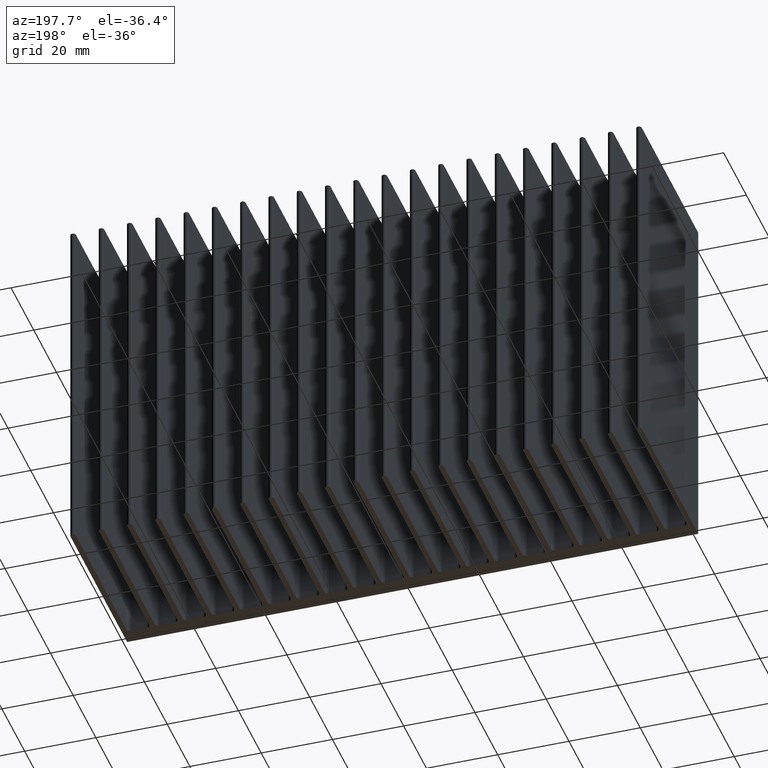
[diagram: clean part render]
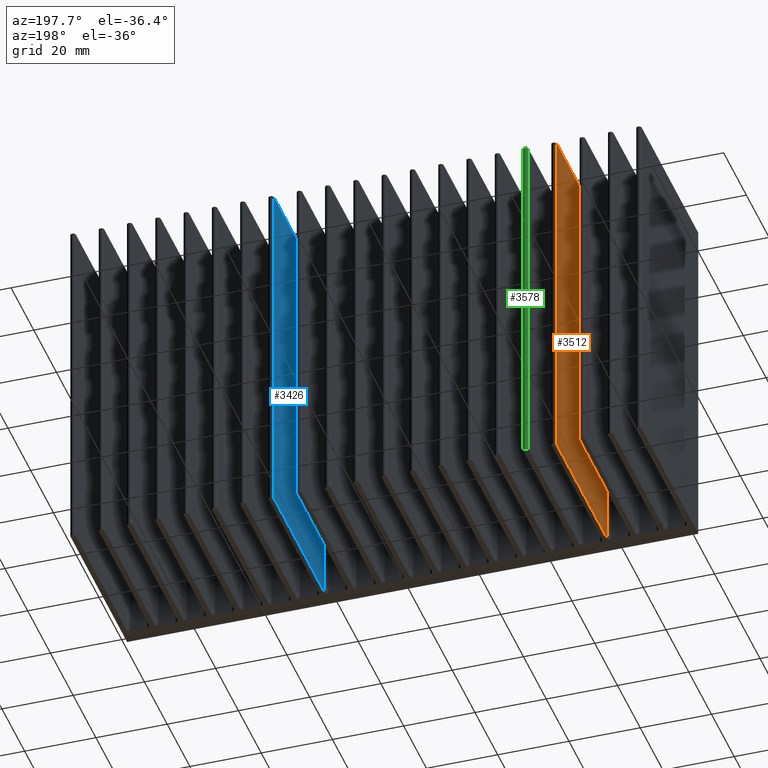
[diagram: same view with three faces highlighted in distinct colors, each labeled with its STEP entity id]
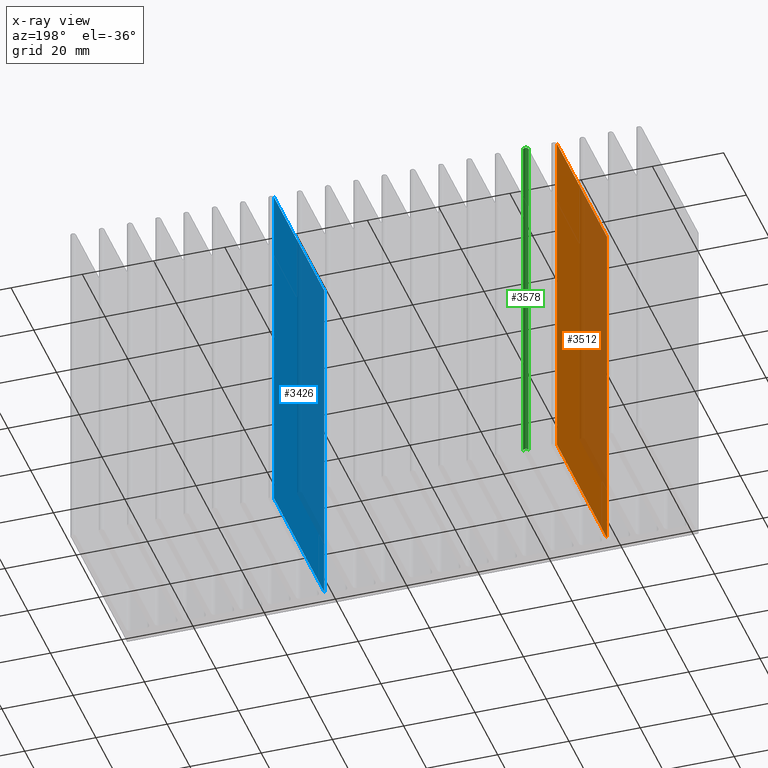
[diagram: x-ray of the same camera — body ghosted, the three highlighted faces saturated]
A machine part, auxiliary view with three faces highlighted in distinct colors.
The next image is the same camera in x-ray (body ghosted, the three faces saturated) — at least one of them is partly hidden behind the body in this view.
Their STEP definitions:

[orange] entity #3512 — the highlighted planar face has unit normal (1, 0, -0).
#318 = ORIENTED_EDGE ( 'NONE', *, *, #2426, .F. ) ;
#514 = DIRECTION ( 'NONE',  ( 0.0000000000000000000, -1.000000000000000000, 0.0000000000000000000 ) ) ;
#527 = ORIENTED_EDGE ( 'NONE', *, *, #796, .T. ) ;
#542 = DIRECTION ( 'NONE',  ( -0.0000000000000000000, 0.0000000000000000000, -1.000000000000000000 ) ) ;
#543 = ORIENTED_EDGE ( 'NONE', *, *, #3230, .F. ) ;
#575 = ORIENTED_EDGE ( 'NONE', *, *, #2797, .T. ) ;
#580 = DIRECTION ( 'NONE',  ( -0.0000000000000000000, -0.0000000000000000000, -1.000000000000000000 ) ) ;
#796 = EDGE_CURVE ( 'NONE', #1583, #2129, #1703, .T. ) ;
#1261 = DIRECTION ( 'NONE',  ( 0.0000000000000000000, -1.000000000000000000, 0.0000000000000000000 ) ) ;
#1276 = VECTOR ( 'NONE', #1261, 1000.000000000000000 ) ;
#1312 = CARTESIAN_POINT ( 'NONE',  ( -56.32999999999979934, -19.75000000000029488, 50.00000000000000000 ) ) ;
#1336 = VECTOR ( 'NONE', #580, 1000.000000000000000 ) ;
#1401 = LINE ( 'NONE', #1954, #1276 ) ;
#1443 = LINE ( 'NONE', #3567, #1336 ) ;
#1490 = VECTOR ( 'NONE', #2206, 1000.000000000000000 ) ;
#1583 = VERTEX_POINT ( 'NONE', #2953 ) ;
#1703 = LINE ( 'NONE', #2446, #1490 ) ;
#1954 = CARTESIAN_POINT ( 'NONE',  ( -56.32999999999979934, 24.49999999999925748, 50.00000000000000000 ) ) ;
#2129 = VERTEX_POINT ( 'NONE', #4100 ) ;
#2206 = DIRECTION ( 'NONE',  ( -0.0000000000000000000, -0.0000000000000000000, -1.000000000000000000 ) ) ;
#2426 = EDGE_CURVE ( 'NONE', #4222, #2491, #1443, .T. ) ;
#2446 = CARTESIAN_POINT ( 'NONE',  ( -56.33000000000025409, 24.49999999999925748, 50.00000000000000000 ) ) ;
#2491 = VERTEX_POINT ( 'NONE', #2676 ) ;
#2676 = CARTESIAN_POINT ( 'NONE',  ( -56.32999999999979934, -19.75000000000029488, -50.00000000000000000 ) ) ;
#2797 = EDGE_CURVE ( 'NONE', #2129, #2491, #4065, .T. ) ;
#2881 = DIRECTION ( 'NONE',  ( 1.000000000000000000, 0.0000000000000000000, -0.0000000000000000000 ) ) ;
#2953 = CARTESIAN_POINT ( 'NONE',  ( -56.33000000000025409, 24.49999999999925748, 50.00000000000000000 ) ) ;
#3230 = EDGE_CURVE ( 'NONE', #1583, #4222, #1401, .T. ) ;
#3399 = FACE_OUTER_BOUND ( 'NONE', #3882, .T. ) ;
#3420 = AXIS2_PLACEMENT_3D ( 'NONE', #3541, #2881, #542 ) ;
#3512 = ADVANCED_FACE ( 'NONE', ( #3399 ), #4254, .F. ) ;
#3541 = CARTESIAN_POINT ( 'NONE',  ( -56.32999999999979934, 24.49999999999925748, 50.00000000000000000 ) ) ;
#3542 = VECTOR ( 'NONE', #514, 1000.000000000000000 ) ;
#3567 = CARTESIAN_POINT ( 'NONE',  ( -56.32999999999979934, -19.75000000000029488, 50.00000000000000000 ) ) ;
#3882 = EDGE_LOOP ( 'NONE', ( #575, #318, #543, #527 ) ) ;
#4065 = LINE ( 'NONE', #4220, #3542 ) ;
#4100 = CARTESIAN_POINT ( 'NONE',  ( -56.33000000000025409, 24.49999999999925748, -50.00000000000000000 ) ) ;
#4220 = CARTESIAN_POINT ( 'NONE',  ( -56.32999999999979934, 24.49999999999925748, -50.00000000000000000 ) ) ;
#4222 = VERTEX_POINT ( 'NONE', #1312 ) ;
#4254 = PLANE ( 'NONE',  #3420 ) ;

[blue] entity #3426 — the highlighted planar face has unit normal (1, 0, -0).
#43 = CARTESIAN_POINT ( 'NONE',  ( 23.07000000000050832, 24.49999999999925748, 50.00000000000000000 ) ) ;
#237 = VERTEX_POINT ( 'NONE', #879 ) ;
#409 = VERTEX_POINT ( 'NONE', #1492 ) ;
#504 = DIRECTION ( 'NONE',  ( -0.0000000000000000000, -0.0000000000000000000, -1.000000000000000000 ) ) ;
#839 = CARTESIAN_POINT ( 'NONE',  ( 23.06999999999982265, 24.49999999999925748, 50.00000000000000000 ) ) ;
#879 = CARTESIAN_POINT ( 'NONE',  ( 23.06999999999982265, 24.49999999999925748, 50.00000000000000000 ) ) ;
#907 = VECTOR ( 'NONE', #3544, 1000.000000000000000 ) ;
#928 = EDGE_LOOP ( 'NONE', ( #1571, #1565, #1523, #1476 ) ) ;
#1067 = AXIS2_PLACEMENT_3D ( 'NONE', #43, #1709, #3662 ) ;
#1120 = DIRECTION ( 'NONE',  ( -0.0000000000000000000, -0.0000000000000000000, -1.000000000000000000 ) ) ;
#1342 = LINE ( 'NONE', #2269, #907 ) ;
#1408 = CARTESIAN_POINT ( 'NONE',  ( 23.06999999999982265, 24.49999999999925748, -50.00000000000000000 ) ) ;
#1475 = CARTESIAN_POINT ( 'NONE',  ( 23.07000000000075701, -19.75000000000029488, 50.00000000000000000 ) ) ;
#1476 = ORIENTED_EDGE ( 'NONE', *, *, #2818, .T. ) ;
#1492 = CARTESIAN_POINT ( 'NONE',  ( 23.07000000000075701, -19.75000000000029488, 50.00000000000000000 ) ) ;
#1523 = ORIENTED_EDGE ( 'NONE', *, *, #2228, .F. ) ;
#1565 = ORIENTED_EDGE ( 'NONE', *, *, #3022, .F. ) ;
#1571 = ORIENTED_EDGE ( 'NONE', *, *, #3251, .T. ) ;
#1709 = DIRECTION ( 'NONE',  ( 1.000000000000000000, 5.645201820127971357E-15, -0.0000000000000000000 ) ) ;
#2066 = PLANE ( 'NONE',  #1067 ) ;
#2228 = EDGE_CURVE ( 'NONE', #237, #409, #2731, .T. ) ;
#2269 = CARTESIAN_POINT ( 'NONE',  ( 23.07000000000050832, 24.49999999999925748, -50.00000000000000000 ) ) ;
#2600 = LINE ( 'NONE', #1475, #2742 ) ;
#2653 = FACE_OUTER_BOUND ( 'NONE', #928, .T. ) ;
#2696 = VECTOR ( 'NONE', #3905, 1000.000000000000000 ) ;
#2731 = LINE ( 'NONE', #4251, #2696 ) ;
#2742 = VECTOR ( 'NONE', #1120, 1000.000000000000000 ) ;
#2818 = EDGE_CURVE ( 'NONE', #237, #3878, #3398, .T. ) ;
#2899 = VERTEX_POINT ( 'NONE', #3817 ) ;
#3022 = EDGE_CURVE ( 'NONE', #409, #2899, #2600, .T. ) ;
#3251 = EDGE_CURVE ( 'NONE', #3878, #2899, #1342, .T. ) ;
#3343 = VECTOR ( 'NONE', #504, 1000.000000000000000 ) ;
#3398 = LINE ( 'NONE', #839, #3343 ) ;
#3426 = ADVANCED_FACE ( 'NONE', ( #2653 ), #2066, .F. ) ;
#3544 = DIRECTION ( 'NONE',  ( 5.645201820127971357E-15, -1.000000000000000000, 0.0000000000000000000 ) ) ;
#3662 = DIRECTION ( 'NONE',  ( -5.645201820127971357E-15, 1.000000000000000000, 0.0000000000000000000 ) ) ;
#3817 = CARTESIAN_POINT ( 'NONE',  ( 23.07000000000075701, -19.75000000000029488, -50.00000000000000000 ) ) ;
#3878 = VERTEX_POINT ( 'NONE', #1408 ) ;
#3905 = DIRECTION ( 'NONE',  ( 5.645201820127971357E-15, -1.000000000000000000, 0.0000000000000000000 ) ) ;
#4251 = CARTESIAN_POINT ( 'NONE',  ( 23.07000000000050832, 24.49999999999925748, 50.00000000000000000 ) ) ;

[green] entity #3578 — the highlighted cylindrical surface (edge-blend (fillet) strip) has radius 0.75 mm, axis along (-0, -0, -1).
#252 = DIRECTION ( 'NONE',  ( -0.0000000000000000000, -0.0000000000000000000, -1.000000000000000000 ) ) ;
#745 = DIRECTION ( 'NONE',  ( 1.000000000000000000, 0.0000000000000000000, 0.0000000000000000000 ) ) ;
#842 = CIRCLE ( 'NONE', #2224, 0.7499999999995426991 ) ;
#844 = ORIENTED_EDGE ( 'NONE', *, *, #3695, .F. ) ;
#1122 = ORIENTED_EDGE ( 'NONE', *, *, #2477, .T. ) ;
#1149 = AXIS2_PLACEMENT_3D ( 'NONE', #3745, #3067, #745 ) ;
#1169 = VECTOR ( 'NONE', #252, 1000.000000000000000 ) ;
#1206 = ORIENTED_EDGE ( 'NONE', *, *, #3106, .T. ) ;
#1386 = LINE ( 'NONE', #2606, #1169 ) ;
#1506 = CYLINDRICAL_SURFACE ( 'NONE', #2217, 0.7500000000005626610 ) ;
#1579 = CARTESIAN_POINT ( 'NONE',  ( -47.63999999999975188, 24.50000000000028422, 50.00000000000000000 ) ) ;
#1601 = DIRECTION ( 'NONE',  ( 0.0000000000000000000, 0.0000000000000000000, 1.000000000000000000 ) ) ;
#1607 = CARTESIAN_POINT ( 'NONE',  ( -46.89000000000020663, 24.49999999999925748, 50.00000000000000000 ) ) ;
#1647 = DIRECTION ( 'NONE',  ( 1.000000000000000000, 0.0000000000000000000, 0.0000000000000000000 ) ) ;
#1868 = EDGE_CURVE ( 'NONE', #2359, #3788, #842, .T. ) ;
#1931 = VECTOR ( 'NONE', #3490, 1000.000000000000000 ) ;
#2114 = VERTEX_POINT ( 'NONE', #4165 ) ;
#2124 = DIRECTION ( 'NONE',  ( -1.000000000000000000, 0.0000000000000000000, 0.0000000000000000000 ) ) ;
#2192 = LINE ( 'NONE', #3841, #1931 ) ;
#2217 = AXIS2_PLACEMENT_3D ( 'NONE', #2744, #3059, #2124 ) ;
#2224 = AXIS2_PLACEMENT_3D ( 'NONE', #1579, #1601, #1647 ) ;
#2336 = CIRCLE ( 'NONE', #1149, 0.7500000000005626610 ) ;
#2359 = VERTEX_POINT ( 'NONE', #1607 ) ;
#2404 = ORIENTED_EDGE ( 'NONE', *, *, #1868, .F. ) ;
#2477 = EDGE_CURVE ( 'NONE', #2359, #2114, #1386, .T. ) ;
#2606 = CARTESIAN_POINT ( 'NONE',  ( -46.89000000000020663, 24.49999999999925748, 50.00000000000000000 ) ) ;
#2711 = EDGE_LOOP ( 'NONE', ( #1206, #844, #2404, #1122 ) ) ;
#2744 = CARTESIAN_POINT ( 'NONE',  ( -47.63999999999975188, 24.50000000000028422, 50.00000000000000000 ) ) ;
#3059 = DIRECTION ( 'NONE',  ( -0.0000000000000000000, -0.0000000000000000000, -1.000000000000000000 ) ) ;
#3067 = DIRECTION ( 'NONE',  ( 0.0000000000000000000, 0.0000000000000000000, 1.000000000000000000 ) ) ;
#3106 = EDGE_CURVE ( 'NONE', #2114, #4240, #2336, .T. ) ;
#3490 = DIRECTION ( 'NONE',  ( -0.0000000000000000000, -0.0000000000000000000, -1.000000000000000000 ) ) ;
#3578 = ADVANCED_FACE ( 'NONE', ( #3730 ), #1506, .T. ) ;
#3587 = CARTESIAN_POINT ( 'NONE',  ( -48.39000000000031321, 24.49999999999925748, 50.00000000000000000 ) ) ;
#3695 = EDGE_CURVE ( 'NONE', #3788, #4240, #2192, .T. ) ;
#3730 = FACE_OUTER_BOUND ( 'NONE', #2711, .T. ) ;
#3745 = CARTESIAN_POINT ( 'NONE',  ( -47.63999999999975188, 24.50000000000028422, -50.00000000000000000 ) ) ;
#3788 = VERTEX_POINT ( 'NONE', #3587 ) ;
#3841 = CARTESIAN_POINT ( 'NONE',  ( -48.39000000000031321, 24.49999999999925748, 50.00000000000000000 ) ) ;
#4096 = CARTESIAN_POINT ( 'NONE',  ( -48.39000000000031321, 24.49999999999925748, -50.00000000000000000 ) ) ;
#4165 = CARTESIAN_POINT ( 'NONE',  ( -46.89000000000020663, 24.49999999999925748, -50.00000000000000000 ) ) ;
#4240 = VERTEX_POINT ( 'NONE', #4096 ) ;